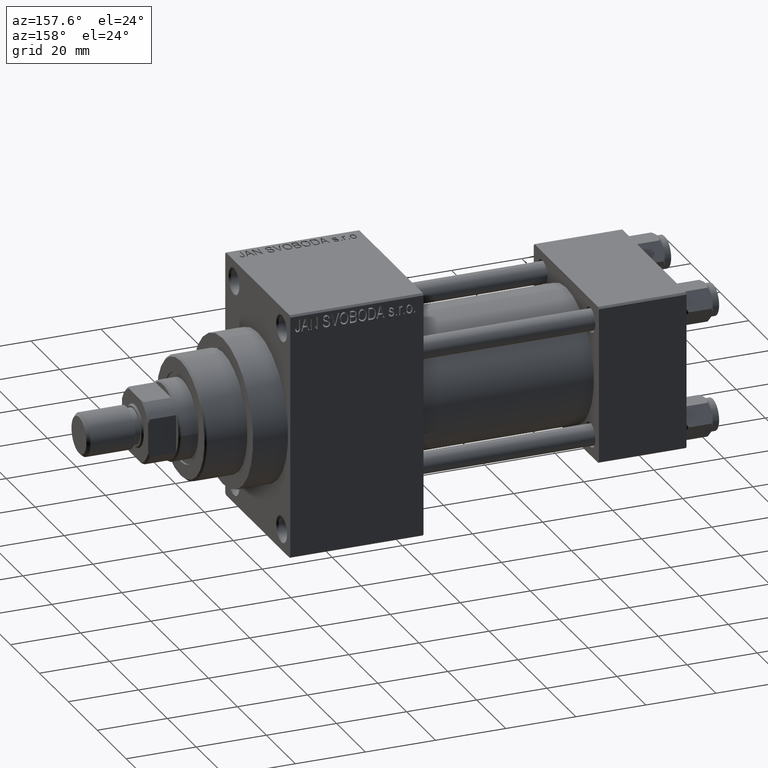
[diagram: clean part render]
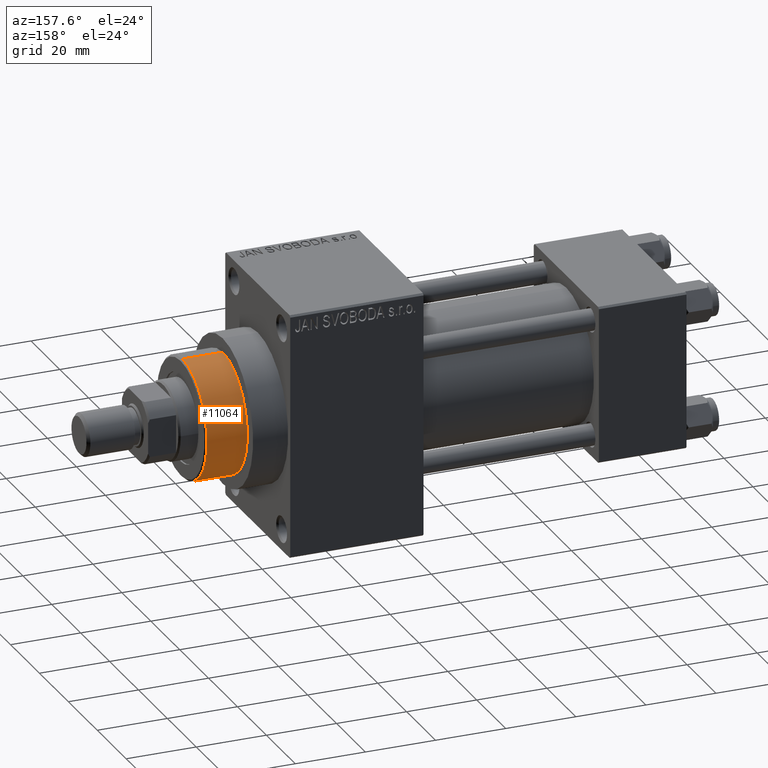
[diagram: same view with one face highlighted and labeled with its STEP entity id]
A machine part, auxiliary view. The second image highlights one B-rep face of the part: STEP entity #11064.
In plain terms, the highlighted cylindrical surface (partial cylindrical patch) has radius 17 mm, axis along (-1, 0, 0).
Its self-contained STEP definition (entity closure, byte-faithful):
#625 = CARTESIAN_POINT ( 'NONE',  ( -17.00000000000000000, 0.000000000000000000, 54.76000000000001222 ) ) ;
#1843 = ORIENTED_EDGE ( 'NONE', *, *, #26623, .T. ) ;
#4683 = CARTESIAN_POINT ( 'NONE',  ( -17.00000000000000000, 0.000000000000000000, 55.26000000000000512 ) ) ;
#5280 = DIRECTION ( 'NONE',  ( 0.000000000000000000, 0.000000000000000000, 1.000000000000000000 ) ) ;
#5403 = DIRECTION ( 'NONE',  ( -0.000000000000000000, -0.000000000000000000, -1.000000000000000000 ) ) ;
#6134 = VECTOR ( 'NONE', #18879, 1000.000000000000000 ) ;
#7408 = EDGE_CURVE ( 'NONE', #33884, #9279, #28259, .T. ) ;
#7501 = EDGE_LOOP ( 'NONE', ( #12071, #46688, #8936, #1843 ) ) ;
#7854 = CARTESIAN_POINT ( 'NONE',  ( 17.00000000000000000, 2.081899558550500280E-15, 54.76000000000001222 ) ) ;
#8075 = CARTESIAN_POINT ( 'NONE',  ( 17.00000000000000000, 2.081899558550500280E-15, 55.26000000000000512 ) ) ;
#8654 = CARTESIAN_POINT ( 'NONE',  ( 17.00000000000000000, 2.081899558550500280E-15, 43.25999999999999801 ) ) ;
#8936 = ORIENTED_EDGE ( 'NONE', *, *, #13195, .T. ) ;
#9279 = VERTEX_POINT ( 'NONE', #625 ) ;
#11064 = ADVANCED_FACE ( 'NONE', ( #17605 ), #46989, .T. ) ;
#12071 = ORIENTED_EDGE ( 'NONE', *, *, #43035, .F. ) ;
#12343 = AXIS2_PLACEMENT_3D ( 'NONE', #34903, #5280, #23570 ) ;
#13195 = EDGE_CURVE ( 'NONE', #9279, #43621, #22965, .T. ) ;
#14002 = CARTESIAN_POINT ( 'NONE',  ( 0.000000000000000000, 0.000000000000000000, 55.26000000000000512 ) ) ;
#17605 = FACE_OUTER_BOUND ( 'NONE', #7501, .T. ) ;
#18879 = DIRECTION ( 'NONE',  ( -0.000000000000000000, -0.000000000000000000, -1.000000000000000000 ) ) ;
#19236 = CIRCLE ( 'NONE', #12343, 17.00000000000000000 ) ;
#20557 = AXIS2_PLACEMENT_3D ( 'NONE', #27294, #27066, #38161 ) ;
#22965 = LINE ( 'NONE', #4683, #6134 ) ;
#23570 = DIRECTION ( 'NONE',  ( 1.000000000000000000, 0.000000000000000000, 0.000000000000000000 ) ) ;
#23725 = AXIS2_PLACEMENT_3D ( 'NONE', #14002, #28691, #31589 ) ;
#26623 = EDGE_CURVE ( 'NONE', #43621, #41777, #19236, .T. ) ;
#27066 = DIRECTION ( 'NONE',  ( 0.000000000000000000, 0.000000000000000000, -1.000000000000000000 ) ) ;
#27294 = CARTESIAN_POINT ( 'NONE',  ( 0.000000000000000000, 0.000000000000000000, 54.76000000000001222 ) ) ;
#28259 = CIRCLE ( 'NONE', #20557, 17.00000000000000000 ) ;
#28691 = DIRECTION ( 'NONE',  ( -0.000000000000000000, -0.000000000000000000, -1.000000000000000000 ) ) ;
#31589 = DIRECTION ( 'NONE',  ( -1.000000000000000000, 0.000000000000000000, 0.000000000000000000 ) ) ;
#31880 = CARTESIAN_POINT ( 'NONE',  ( -17.00000000000000000, 0.000000000000000000, 43.25999999999999801 ) ) ;
#33884 = VERTEX_POINT ( 'NONE', #7854 ) ;
#34903 = CARTESIAN_POINT ( 'NONE',  ( 0.000000000000000000, 0.000000000000000000, 43.25999999999999801 ) ) ;
#38161 = DIRECTION ( 'NONE',  ( 1.000000000000000000, 0.000000000000000000, 0.000000000000000000 ) ) ;
#41777 = VERTEX_POINT ( 'NONE', #8654 ) ;
#43035 = EDGE_CURVE ( 'NONE', #33884, #41777, #45145, .T. ) ;
#43621 = VERTEX_POINT ( 'NONE', #31880 ) ;
#45145 = LINE ( 'NONE', #8075, #45726 ) ;
#45726 = VECTOR ( 'NONE', #5403, 1000.000000000000000 ) ;
#46688 = ORIENTED_EDGE ( 'NONE', *, *, #7408, .T. ) ;
#46989 = CYLINDRICAL_SURFACE ( 'NONE', #23725, 17.00000000000000000 ) ;